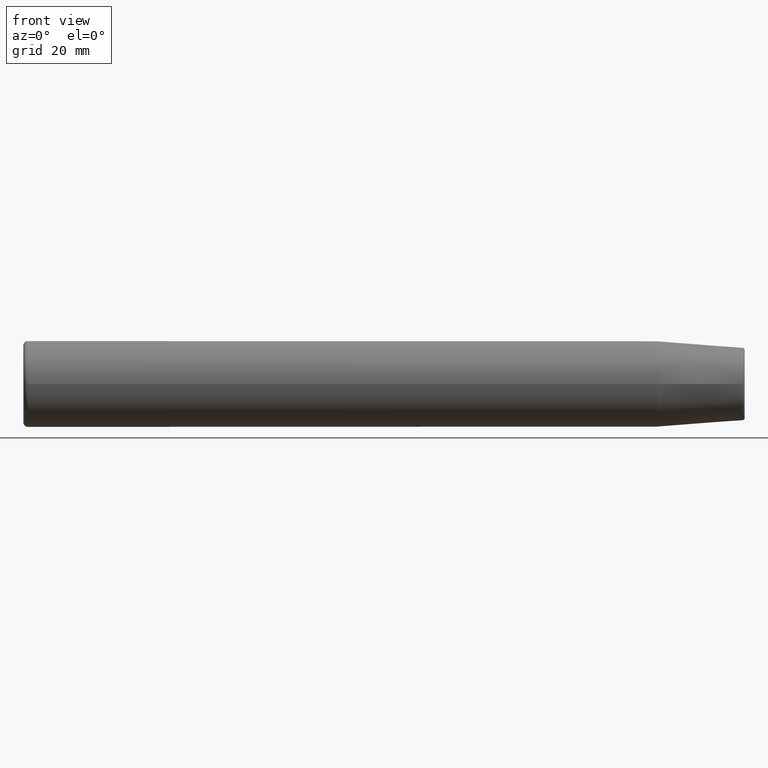
[diagram: clean part render]
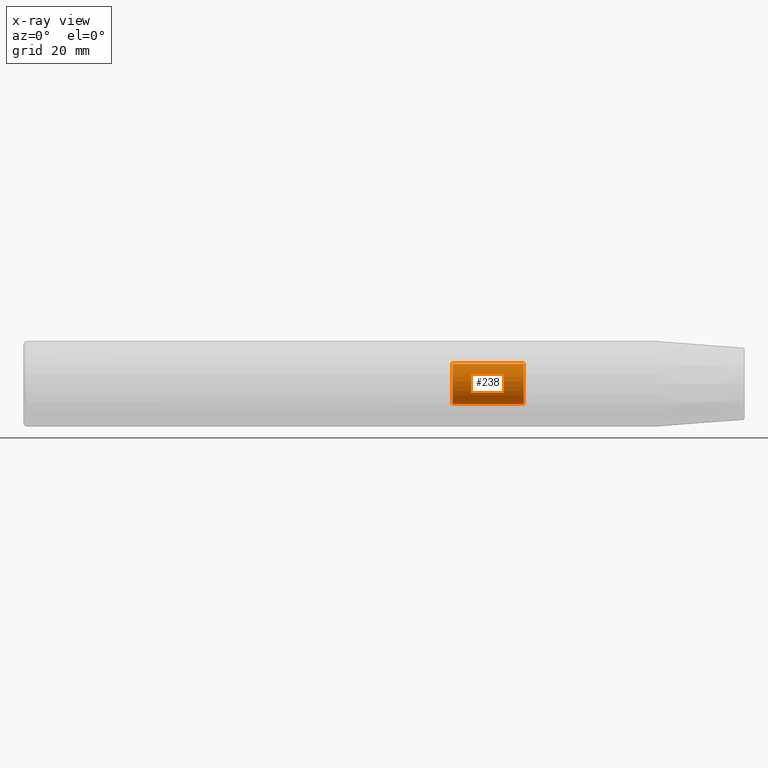
[diagram: x-ray — body ghosted, one internal face saturated and labeled with its STEP entity id]
A machine part, front view, then the same camera in x-ray: the body is ghosted and one INTERNAL B-rep face — a face not visible from any outside direction — is saturated and labeled: STEP entity #238.
In plain terms, the highlighted cylindrical surface (bore or boss wall) has radius 4.4587 mm, axis along (1, 0, 0).
Its self-contained STEP definition (entity closure, byte-faithful):
#27=CYLINDRICAL_SURFACE('',#281,4.458734);
#33=FACE_OUTER_BOUND('',#49,.T.);
#49=EDGE_LOOP('',(#172,#173,#174,#175,#176));
#69=LINE('',#427,#77);
#77=VECTOR('',#335,4.458734);
#88=CIRCLE('',#282,4.458734);
#89=CIRCLE('',#283,4.458734);
#90=CIRCLE('',#284,4.458734);
#114=VERTEX_POINT('',#424);
#115=VERTEX_POINT('',#426);
#116=VERTEX_POINT('',#428);
#137=EDGE_CURVE('',#114,#114,#88,.T.);
#138=EDGE_CURVE('',#114,#115,#69,.T.);
#139=EDGE_CURVE('',#116,#115,#89,.T.);
#140=EDGE_CURVE('',#115,#116,#90,.T.);
#172=ORIENTED_EDGE('',*,*,#137,.F.);
#173=ORIENTED_EDGE('',*,*,#138,.T.);
#174=ORIENTED_EDGE('',*,*,#139,.F.);
#175=ORIENTED_EDGE('',*,*,#140,.F.);
#176=ORIENTED_EDGE('',*,*,#138,.F.);
#238=ADVANCED_FACE('',(#33),#27,.F.);
#281=AXIS2_PLACEMENT_3D('',#423,#331,#332);
#282=AXIS2_PLACEMENT_3D('',#425,#333,#334);
#283=AXIS2_PLACEMENT_3D('',#429,#336,#337);
#284=AXIS2_PLACEMENT_3D('',#430,#338,#339);
#331=DIRECTION('center_axis',(1.,0.,0.));
#332=DIRECTION('ref_axis',(0.,0.,-1.));
#333=DIRECTION('center_axis',(-1.,0.,0.));
#334=DIRECTION('ref_axis',(0.,0.,-1.));
#335=DIRECTION('',(-1.,0.,0.));
#336=DIRECTION('center_axis',(1.,0.,0.));
#337=DIRECTION('ref_axis',(0.,0.,-1.));
#338=DIRECTION('center_axis',(1.,0.,0.));
#339=DIRECTION('ref_axis',(0.,0.,-1.));
#423=CARTESIAN_POINT('Origin',(-61.55,0.,0.));
#424=CARTESIAN_POINT('',(-49.,-5.46037432134947E-16,4.458734));
#425=CARTESIAN_POINT('Origin',(-49.,0.,0.));
#426=CARTESIAN_POINT('',(-64.7734836476401,-5.46037432134947E-16,4.458734));
#427=CARTESIAN_POINT('',(-61.55,-5.46037432134947E-16,4.458734));
#428=CARTESIAN_POINT('',(-64.7734836476401,-8.47850137400553E-15,-4.458734));
#429=CARTESIAN_POINT('Origin',(-64.7734836476401,0.,0.));
#430=CARTESIAN_POINT('Origin',(-64.7734836476401,0.,0.));